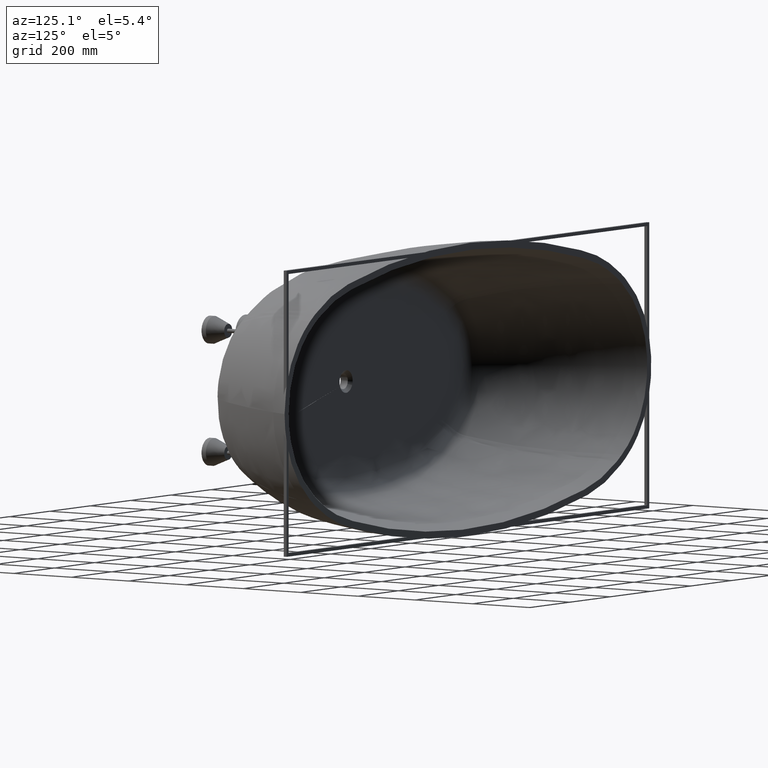
[diagram: clean part render]
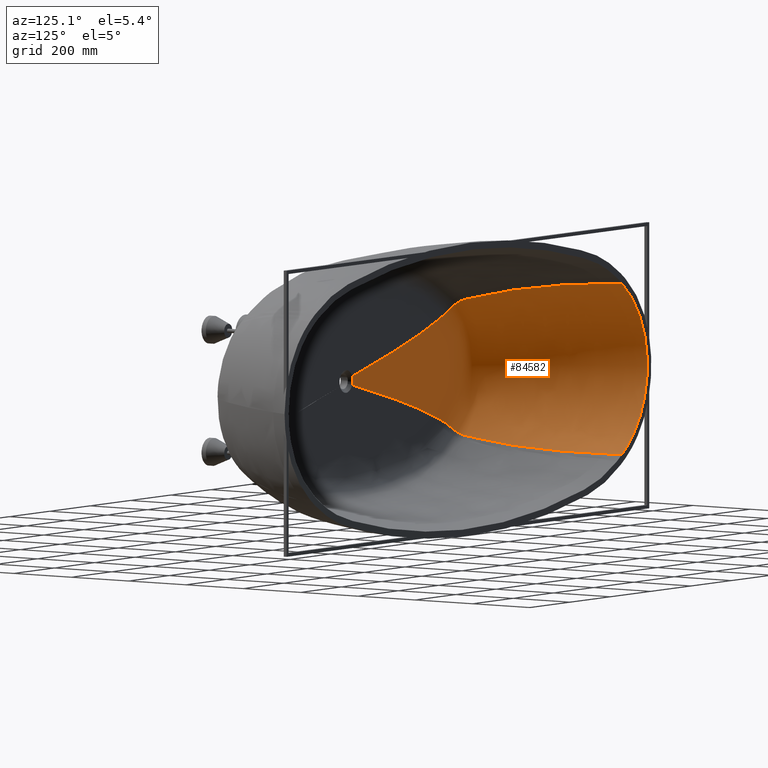
[diagram: same view with one face highlighted and labeled with its STEP entity id]
A machine part, auxiliary view. The second image highlights one B-rep face of the part: STEP entity #84582.
In plain terms, the highlighted face is a freeform B-spline surface patch.
Its self-contained STEP definition (entity closure, byte-faithful):
#126 = CARTESIAN_POINT ( 'NONE',  ( -602.9802361851189971, -301.4173978318845002, -218.3898939131678105 ) ) ;
#787 = CARTESIAN_POINT ( 'NONE',  ( -470.2627012445794321, -425.0000000000000568, 129.5236119817717508 ) ) ;
#990 = CARTESIAN_POINT ( 'NONE',  ( -574.6094987703708057, -377.2359690098493843, 184.5438952929218033 ) ) ;
#1196 = CARTESIAN_POINT ( 'NONE',  ( -31.82125616709898708, -425.0000000000002842, 6.538218446825521113 ) ) ;
#1434 = CARTESIAN_POINT ( 'NONE',  ( -884.1175909659924628, 0.0000000000000000000, -68.19584851435422479 ) ) ;
#1659 = CARTESIAN_POINT ( 'NONE',  ( -426.9182082687505044, -425.0000000000000568, 59.23185770312401388 ) ) ;
#1856 = CARTESIAN_POINT ( 'NONE',  ( -618.4860956474205977, -395.1953534944752278, 101.7796647255279936 ) ) ;
#2066 = CARTESIAN_POINT ( 'NONE',  ( -32.30730635550679608, -425.0000000000001705, -3.513717044238958476 ) ) ;
#2539 = CARTESIAN_POINT ( 'NONE',  ( -294.3379773499847261, -425.0000000000003411, 4.362917863610960644E-10 ) ) ;
#2736 = CARTESIAN_POINT ( 'NONE',  ( -640.6060123566567199, -398.6111520844644360, -1.313451784379805246E-09 ) ) ;
#3410 = CARTESIAN_POINT ( 'NONE',  ( -145.0033374304802294, -425.0000000000000568, -19.08390263455211766 ) ) ;
#3610 = CARTESIAN_POINT ( 'NONE',  ( -612.9874582445504529, -401.2465190131383679, -100.5095781001979276 ) ) ;
#4293 = CARTESIAN_POINT ( 'NONE',  ( -57.85718630919171801, -425.0000000000003411, -17.15731586250793228 ) ) ;
#4492 = CARTESIAN_POINT ( 'NONE',  ( -555.2618717703337552, -402.9565846963503191, -176.0696854547352928 ) ) ;
#5365 = CARTESIAN_POINT ( 'NONE',  ( -530.2474019294827485, -408.5538852651549746, 186.2715315148624313 ) ) ;
#5600 = CARTESIAN_POINT ( 'NONE',  ( -541.4533807296041914, -395.4375403904197128, 194.1251443849746465 ) ) ;
#6238 = CARTESIAN_POINT ( 'NONE',  ( -577.5504314760065654, -411.8631060267908879, 137.9232278893063892 ) ) ;
#6899 = CARTESIAN_POINT ( 'NONE',  ( -737.6175872662125812, -56.21857355978363557, -244.2740935472064621 ) ) ;
#7100 = CARTESIAN_POINT ( 'NONE',  ( -611.6615194018094144, -414.4418579159071783, 50.41428262879040290 ) ) ;
#7765 = CARTESIAN_POINT ( 'NONE',  ( -530.2474019287715237, -408.5538852650131503, -186.2715315173127237 ) ) ;
#7963 = CARTESIAN_POINT ( 'NONE',  ( -608.0362641373938004, -416.3599896351407779, -49.67472587785500338 ) ) ;
#8634 = CARTESIAN_POINT ( 'NONE',  ( -377.4490720482747861, -424.9999999999999432, -110.1307023979033204 ) ) ;
#8834 = CARTESIAN_POINT ( 'NONE',  ( -567.4798020206698084, -418.0246413842516517, -131.7582035948495616 ) ) ;
#9049 = CARTESIAN_POINT ( 'NONE',  ( -823.7913782033846246, -19.84595204168432758, -183.8693107156827296 ) ) ;
#9711 = CARTESIAN_POINT ( 'NONE',  ( -515.2084871030123168, -419.6565130355135125, -172.0340845799219949 ) ) ;
#9922 = CARTESIAN_POINT ( 'NONE',  ( -737.6175872662125812, -56.21857355978363557, -244.2740935472064621 ) ) ;
#10585 = CARTESIAN_POINT ( 'NONE',  ( -526.5011172390976526, -422.4042921638131816, 153.8542310522528282 ) ) ;
#10799 = CARTESIAN_POINT ( 'NONE',  ( -709.9555606062410789, -160.1666056801144862, 219.8147113251353630 ) ) ;
#11475 = CARTESIAN_POINT ( 'NONE',  ( -573.0378401845335929, -423.3936669735269902, 86.22968349193941151 ) ) ;
#11682 = CARTESIAN_POINT ( 'NONE',  ( -748.8340840202179152, -212.2179674089303489, 121.5258740470172256 ) ) ;
#12357 = CARTESIAN_POINT ( 'NONE',  ( -590.5003257651015929, -424.2168557447056969, -2.211613398642992757E-10 ) ) ;
#12564 = CARTESIAN_POINT ( 'NONE',  ( -746.6021976486706535, -260.7674058136171880, -1.176713229418375892E-09 ) ) ;
#13228 = CARTESIAN_POINT ( 'NONE',  ( -563.0806991572630977, -424.8230615905711716, -83.56326089017956349 ) ) ;
#13431 = CARTESIAN_POINT ( 'NONE',  ( -686.9028054808314891, -305.0821521605598150, -113.7773686866715224 ) ) ;
#14097 = CARTESIAN_POINT ( 'NONE',  ( -510.0264130633615878, -425.0000000000000568, -144.7693037255889976 ) ) ;
#14300 = CARTESIAN_POINT ( 'NONE',  ( -595.2024258151003551, -347.5869232337872177, -192.0893117577127214 ) ) ;
#14502 = CARTESIAN_POINT ( 'NONE',  ( -31.46225561373084645, -425.0000000000001705, 8.092342859449818349 ) ) ;
#14739 = CARTESIAN_POINT ( 'NONE',  ( -863.0896100920674598, 0.0000000000000000000, 128.2270580749477631 ) ) ;
#14969 = CARTESIAN_POINT ( 'NONE',  ( -377.4490720472351200, -425.0000000000001137, 110.1307024000943500 ) ) ;
#15169 = CARTESIAN_POINT ( 'NONE',  ( -543.3574728373009748, -392.7630439505473987, 195.0488954957824035 ) ) ;
#15374 = CARTESIAN_POINT ( 'NONE',  ( -32.50006390584670868, -425.0000000000005684, 0.4891279954183393452 ) ) ;
#15611 = CARTESIAN_POINT ( 'NONE',  ( -885.7877090839524499, -20.45155759813055596, 1.866827139609420419E-11 ) ) ;
#15641 = EDGE_CURVE ( 'NONE', #64127, #79948, #115005, .T. ) ;
#15841 = CARTESIAN_POINT ( 'NONE',  ( -274.9613346286967612, -425.0000000000001705, 54.29661028775296217 ) ) ;
#16038 = CARTESIAN_POINT ( 'NONE',  ( -593.2915817213131504, -397.0490638878758318, 145.4280225789121630 ) ) ;
#16244 = CARTESIAN_POINT ( 'NONE',  ( -30.18770637737300788, -425.0000000000000568, -11.99473740934463883 ) ) ;
#16717 = CARTESIAN_POINT ( 'NONE',  ( -147.8065980595003737, -425.0000000000001705, 10.01820543957340881 ) ) ;
#16919 = CARTESIAN_POINT ( 'NONE',  ( -628.8245336329329120, -401.7269980670085943, 53.40193584968791640 ) ) ;
#17602 = CARTESIAN_POINT ( 'NONE',  ( -62.34727932653861870, -425.0000000000001705, -4.647427353547889162 ) ) ;
#17645 = EDGE_CURVE ( 'NONE', #64127, #96558, #110601, .T. ) ;
#17800 = CARTESIAN_POINT ( 'NONE',  ( -625.4588948368651700, -404.7748247059695927, -52.92357635218281331 ) ) ;
#18478 = CARTESIAN_POINT ( 'NONE',  ( -21.58675342020653076, -425.0000000000002274, -6.508844498965148162 ) ) ;
#18681 = CARTESIAN_POINT ( 'NONE',  ( -583.9129857107200223, -406.6922400754192495, -141.4443743032845191 ) ) ;
#19114 = CARTESIAN_POINT ( 'NONE',  ( -377.4490720472351200, -425.0000000000001137, 110.1307024000943500 ) ) ;
#19542 = CARTESIAN_POINT ( 'NONE',  ( -530.2474019287715237, -408.5538852650131503, -186.2715315173127237 ) ) ;
#20412 = CARTESIAN_POINT ( 'NONE',  ( -543.3517808337430779, -413.8736749523329763, 167.1954987560604593 ) ) ;
#20439 = CARTESIAN_POINT ( 'NONE',  ( -504.5978153207740888, -423.4701323780609528, 163.3322115695874857 ) ) ;
#20826 = ORIENTED_EDGE ( 'NONE', *, *, #87161, .F. ) ;
#21075 = CARTESIAN_POINT ( 'NONE',  ( -538.6477861276227941, -399.0944967763387581, -192.5302517700616249 ) ) ;
#21276 = CARTESIAN_POINT ( 'NONE',  ( -592.8239605316024381, -416.2846592877611442, 93.37850596166410355 ) ) ;
#21508 = CARTESIAN_POINT ( 'NONE',  ( -454.1875000870574581, -425.0000000000000000, 139.3175329190581806 ) ) ;
#21951 = CARTESIAN_POINT ( 'NONE',  ( -496.0076081260892238, -424.8386884909340893, -157.8817655764608787 ) ) ;
#22151 = CARTESIAN_POINT ( 'NONE',  ( -612.3149402558336760, -418.1230524194695590, -7.376438882005649519E-10 ) ) ;
#22586 = CARTESIAN_POINT ( 'NONE',  ( -863.0896100920674598, 0.0000000000000000000, 128.2270580749477631 ) ) ;
#23019 = CARTESIAN_POINT ( 'NONE',  ( -585.4499475583830872, -419.6765977751687728, -90.47301039735147299 ) ) ;
#23232 = CARTESIAN_POINT ( 'NONE',  ( -835.3442660986023611, -58.59421108253516053, -127.4176637926212550 ) ) ;
#23897 = CARTESIAN_POINT ( 'NONE',  ( -530.1750372514480887, -421.1407974199289015, -156.4851799992434849 ) ) ;
#24111 = CARTESIAN_POINT ( 'NONE',  ( -736.9949377520124472, -109.6711051739945759, -223.1896957171292684 ) ) ;
#24788 = CARTESIAN_POINT ( 'NONE',  ( -504.5978153207740888, -423.4701323780609528, 163.3322115695874857 ) ) ;
#25000 = CARTESIAN_POINT ( 'NONE',  ( -658.4731281996407688, -207.7315150475330370, 233.1691286933530591 ) ) ;
#25669 = CARTESIAN_POINT ( 'NONE',  ( -547.5398867521481634, -424.2495973082029082, 121.4693872045136942 ) ) ;
#25876 = CARTESIAN_POINT ( 'NONE',  ( -691.6794442656256479, -257.9830099758077040, 169.6141725031395424 ) ) ;
#26315 = CARTESIAN_POINT ( 'NONE',  ( -30.18770637737300788, -425.0000000000000568, -11.99473740934463883 ) ) ;
#26553 = CARTESIAN_POINT ( 'NONE',  ( -577.3991426176253299, -424.8195725939555132, 44.55668972568628305 ) ) ;
#26756 = CARTESIAN_POINT ( 'NONE',  ( -704.7081345981614504, -305.9003768342631133, 60.42920013337925411 ) ) ;
#27423 = CARTESIAN_POINT ( 'NONE',  ( -573.2977936061308810, -424.9999999999998295, -44.11059459368457425 ) ) ;
#27625 = CARTESIAN_POINT ( 'NONE',  ( -671.1525860205097160, -350.5160064857452085, -57.61906324722164641 ) ) ;
#27832 = CARTESIAN_POINT ( 'NONE',  ( -30.56663946940440013, -425.0000000000000000, 11.03557178040407116 ) ) ;
#28069 = CARTESIAN_POINT ( 'NONE',  ( -763.1520700604692138, 0.0000000000000000000, 245.9321533621682079 ) ) ;
#28292 = CARTESIAN_POINT ( 'NONE',  ( -496.6211984759149800, -424.9999999999998863, -106.2890734304728966 ) ) ;
#28491 = CARTESIAN_POINT ( 'NONE',  ( -607.6985622425013389, -378.3610162741240970, -149.7186318451759064 ) ) ;
#28517 = CARTESIAN_POINT ( 'NONE',  ( -30.18770637746065333, -425.0000000000001137, 11.99473740912456776 ) ) ;
#28698 = CARTESIAN_POINT ( 'NONE',  ( -32.40421016191452708, -425.0000000000001137, 2.500534530144230771 ) ) ;
#28933 = CARTESIAN_POINT ( 'NONE',  ( -823.7913782033531334, -19.84595204177379202, 183.8693107157343150 ) ) ;
#29161 = CARTESIAN_POINT ( 'NONE',  ( -377.4490720482747861, -424.9999999999999432, -110.1307023979033204 ) ) ;
#29355 = CARTESIAN_POINT ( 'NONE',  ( -543.3574728364152406, -392.7630439502627837, -195.0488954987167176 ) ) ;
#29562 = CARTESIAN_POINT ( 'NONE',  ( -31.92430000175435012, -425.0000000000002842, -6.020179436800304096 ) ) ;
#30034 = CARTESIAN_POINT ( 'NONE',  ( -135.2464764240108934, -425.0000000000000568, 35.06879270372584045 ) ) ;
#30233 = CARTESIAN_POINT ( 'NONE',  ( -558.1756585794762486, -399.6430611225126768, 177.7371474372136504 ) ) ;
#30261 = CARTESIAN_POINT ( 'NONE',  ( -535.8598503314320851, -402.4779609818966151, 190.6994763648927176 ) ) ;
#30910 = CARTESIAN_POINT ( 'NONE',  ( -61.35634107615359056, -425.0000000000002274, 8.984555789077557364 ) ) ;
#31109 = CARTESIAN_POINT ( 'NONE',  ( -609.7211830442915925, -404.3556055729580407, 99.59774394342294102 ) ) ;
#31785 = CARTESIAN_POINT ( 'NONE',  ( -22.58233951523141769, -425.0000000000001705, -4.466912950640278268E-14 ) ) ;
#31988 = CARTESIAN_POINT ( 'NONE',  ( -630.3420802062465782, -407.7253558983433095, -1.172126161776115201E-09 ) ) ;
#32851 = CARTESIAN_POINT ( 'NONE',  ( -603.1307697130147289, -409.7731089936391982, -97.41505229616062422 ) ) ;
#33716 = CARTESIAN_POINT ( 'NONE',  ( -546.4018684995578496, -411.4826915480842899, -169.7092736253342480 ) ) ;
#34379 = CARTESIAN_POINT ( 'NONE',  ( -554.3981725100939002, -376.5673189759795036, -199.9590303515644791 ) ) ;
#34583 = CARTESIAN_POINT ( 'NONE',  ( -521.4839849452127964, -415.9472614731984095, 178.0025205302160032 ) ) ;
#35015 = CARTESIAN_POINT ( 'NONE',  ( -754.6629436553911319, -19.22118092680719315, 245.4380052979320794 ) ) ;
#35251 = CARTESIAN_POINT ( 'NONE',  ( -508.3522299369006419, -422.4251106227803234, -166.1680474963028757 ) ) ;
#35450 = CARTESIAN_POINT ( 'NONE',  ( -567.4798020210879486, -418.0246413842658058, 131.7582035929355015 ) ) ;
#36324 = CARTESIAN_POINT ( 'NONE',  ( -600.4325705753331022, -419.6810820674508022, 48.15974341613767251 ) ) ;
#36539 = CARTESIAN_POINT ( 'NONE',  ( -855.9161576913299996, -59.12461641466914841, 67.76958098101243877 ) ) ;
#36562 = CARTESIAN_POINT ( 'NONE',  ( -554.3981725110975276, -376.5673189762856055, 199.9590303484776825 ) ) ;
#37207 = CARTESIAN_POINT ( 'NONE',  ( -596.3971396060546795, -421.0892257993417047, -47.40824510289746740 ) ) ;
#37421 = CARTESIAN_POINT ( 'NONE',  ( -827.2680388230826338, -113.2728936328449691, -67.04598199548146908 ) ) ;
#38097 = CARTESIAN_POINT ( 'NONE',  ( -556.2415797866065077, -422.3692637496642419, -125.4583839994187144 ) ) ;
#38311 = CARTESIAN_POINT ( 'NONE',  ( -750.0511065363867829, -162.0416940133543449, -178.3206018293022623 ) ) ;
#38993 = CARTESIAN_POINT ( 'NONE',  ( -504.5978153205205103, -423.4701323780698203, -163.3322115702882797 ) ) ;
#39203 = CARTESIAN_POINT ( 'NONE',  ( -658.4731281989821809, -207.7315150470091680, -233.1691286951333950 ) ) ;
#39872 = CARTESIAN_POINT ( 'NONE',  ( -513.6378538872515946, -424.8347050932564457, 146.3502040216273770 ) ) ;
#40075 = CARTESIAN_POINT ( 'NONE',  ( -625.0717413032110699, -302.3515673436201041, 201.5112927749134428 ) ) ;
#40738 = CARTESIAN_POINT ( 'NONE',  ( -559.0876433756135384, -425.0000000000000568, 82.70799631038453015 ) ) ;
#40942 = CARTESIAN_POINT ( 'NONE',  ( -654.1520586154947523, -349.8406678423824587, 108.4930082153678370 ) ) ;
#41612 = CARTESIAN_POINT ( 'NONE',  ( -535.4338485802522882, -425.0000000000001137, 6.110094376389799593E-10 ) ) ;
#41814 = CARTESIAN_POINT ( 'NONE',  ( -656.3126421001866220, -380.0996898848067076, -1.418128057854429133E-09 ) ) ;
#42023 = CARTESIAN_POINT ( 'NONE',  ( -31.90236670356195248, -425.0000000000002842, 6.133538301930813397 ) ) ;
#42261 = CARTESIAN_POINT ( 'NONE',  ( -763.1520700604693275, 0.0000000000000000000, -245.9321533621679521 ) ) ;
#42494 = CARTESIAN_POINT ( 'NONE',  ( -426.9182082693838538, -424.9999999999998295, -59.23185770018350382 ) ) ;
#42687 = CARTESIAN_POINT ( 'NONE',  ( -618.4860956468847917, -395.1953534942963415, -101.7796647292637289 ) ) ;
#42894 = CARTESIAN_POINT ( 'NONE',  ( -31.99677544854736411, -425.0000000000002842, -5.630502032845011051 ) ) ;
#43364 = CARTESIAN_POINT ( 'NONE',  ( -261.7441329571363440, -425.0000000000003979, -66.57412370544388125 ) ) ;
#43560 = CARTESIAN_POINT ( 'NONE',  ( -561.1061483811291737, -396.0382801257885603, -179.1935165862986707 ) ) ;
#44238 = CARTESIAN_POINT ( 'NONE',  ( -56.57637958446736093, -424.9999999999999432, 19.15922462425706385 ) ) ;
#44437 = CARTESIAN_POINT ( 'NONE',  ( -535.8598503314320851, -402.4779609818966151, 190.6994763648927176 ) ) ;
#44666 = CARTESIAN_POINT ( 'NONE',  ( -530.2474019294827485, -408.5538852651549746, 186.2715315148624313 ) ) ;
#45122 = CARTESIAN_POINT ( 'NONE',  ( -21.58675342020704946, -424.9999999999998295, 6.508844498964343472 ) ) ;
#45324 = CARTESIAN_POINT ( 'NONE',  ( -583.9129857113381377, -406.6922400755726130, 141.4443743002305496 ) ) ;
#46191 = CARTESIAN_POINT ( 'NONE',  ( -618.6650101165405431, -410.0453234036803565, 51.78147752656060732 ) ) ;
#47050 = CARTESIAN_POINT ( 'NONE',  ( -615.1983156628430152, -412.3415906279884666, -51.12141264069980906 ) ) ;
#47724 = CARTESIAN_POINT ( 'NONE',  ( -631.0451753377446948, -255.1104965483241358, -226.6636728199838160 ) ) ;
#47923 = CARTESIAN_POINT ( 'NONE',  ( -574.2817441693767933, -414.1253285294211537, -135.9454429266208706 ) ) ;
#48358 = CARTESIAN_POINT ( 'NONE',  ( -789.6773489195265938, 0.0000000000000000000, 227.0592726093456974 ) ) ;
#48591 = CARTESIAN_POINT ( 'NONE',  ( -518.4032822136089180, -417.9231159415848538, -175.0252940275031506 ) ) ;
#48785 = CARTESIAN_POINT ( 'NONE',  ( -521.4839849446468634, -415.9472614731582780, -178.0025205320684734 ) ) ;
#49443 = CARTESIAN_POINT ( 'NONE',  ( -30.18770637737300788, -425.0000000000000568, -11.99473740934463883 ) ) ;
#49638 = CARTESIAN_POINT ( 'NONE',  ( -533.6634543085771156, -419.6616327651748293, 159.1623876015667065 ) ) ;
#49850 = CARTESIAN_POINT ( 'NONE',  ( -763.5455536325357571, -56.82413888440168392, 225.5551108192470338 ) ) ;
#50505 = CARTESIAN_POINT ( 'NONE',  ( -581.5352078707246619, -421.1011163143214162, 89.03163015703050576 ) ) ;
#50717 = CARTESIAN_POINT ( 'NONE',  ( -807.1537543822205407, -112.4424539620524115, 126.0797976504268689 ) ) ;
#51397 = CARTESIAN_POINT ( 'NONE',  ( -600.0014883151806089, -422.3151300423625685, -4.272536625594725047E-10 ) ) ;
#51611 = CARTESIAN_POINT ( 'NONE',  ( -808.3463273107698797, -164.9394981378813725, -5.279268899009300846E-10 ) ) ;
#52286 = CARTESIAN_POINT ( 'NONE',  ( -573.0378401843811389, -423.3936669735322766, -86.22968349284076339 ) ) ;
#52493 = CARTESIAN_POINT ( 'NONE',  ( -748.8340840198203523, -212.2179674086012255, -121.5258740494206506 ) ) ;
#53169 = CARTESIAN_POINT ( 'NONE',  ( -518.3454128303310426, -424.2707834619682217, -148.7850906863513387 ) ) ;
#53374 = CARTESIAN_POINT ( 'NONE',  ( -654.0795462385965493, -256.1813049848698256, -209.1670532728369665 ) ) ;
#54035 = CARTESIAN_POINT ( 'NONE',  ( -492.5306162796304079, -425.0000000000000000, 156.1373289069643135 ) ) ;
#54236 = CARTESIAN_POINT ( 'NONE',  ( -574.1802162513761232, -346.8158871227248596, 208.1705119587356592 ) ) ;
#54905 = CARTESIAN_POINT ( 'NONE',  ( -496.6211984754541504, -425.0000000000000000, 106.2890734320461945 ) ) ;
#55105 = CARTESIAN_POINT ( 'NONE',  ( -607.6985622433244316, -378.3610162743808587, 149.7186318415141386 ) ) ;
#55145 = B_SPLINE_CURVE_WITH_KNOTS ( 'NONE', 3,
 ( #74345, #128498, #6899, #61024, #115184, #169353, #47724, #101854, #156023, #34379, #88522, #142707, #21075, #75211, #129363, #7765, #61896, #116053, #170233, #48591, #102726, #156892, #35251, #89389, #143577, #21951, #76080, #130240, #8634, #62761, #116922, #171096, #49443 ),
 .UNSPECIFIED., .F., .F.,
 ( 4, 1, 1, 1, 1, 1, 1, 1, 2, 1, 1, 1, 1, 1, 1, 1, 1, 1, 1, 1, 1, 1, 1, 1, 2, 1, 1, 1, 4 ),
 ( 0.0000000000000000000, 0.05994086368778128032, 0.1198817273755625606, 0.1798225910633438340, 0.2397634547511251213, 0.2997043184389063808, 0.3596451821266876681, 0.4195860458144689553, 0.4795269095022502426, 0.4853010234369130593, 0.4910751373715758761, 0.4968492513062386373, 0.5026233652409013430, 0.5083974791755642153, 0.5141715931102269765, 0.5199457070448898488, 0.5257198209795526100, 0.5314939349142153713, 0.5372680488488781325, 0.5430421627835408938, 0.5488162767182037660, 0.5545903906528666383, 0.5603645045875293995, 0.5661386185221921608, 0.5719127324568549220, 0.6789345493426411915, 0.7859563662284274610, 0.8929781831142136195, 0.9904148638847132258 ),
 .UNSPECIFIED. ) ;
#55306 = CARTESIAN_POINT ( 'NONE',  ( -31.86560719388291218, -424.9999999999999432, 6.319709468456708557 ) ) ;
#55545 = CARTESIAN_POINT ( 'NONE',  ( -863.0896100920641629, 0.0000000000000000000, -128.2270580749544138 ) ) ;
#55776 = CARTESIAN_POINT ( 'NONE',  ( -437.5089681830575046, -425.0000000000000568, 31.73076980741596032 ) ) ;
#55972 = CARTESIAN_POINT ( 'NONE',  ( -634.4868176414067875, -395.7384119109113385, 54.07030509437064580 ) ) ;
#56180 = CARTESIAN_POINT ( 'NONE',  ( -32.24639915847896532, -425.0000000000003411, -4.024007474342945478 ) ) ;
#56650 = CARTESIAN_POINT ( 'NONE',  ( -290.7435496685375824, -425.0000000000001137, -20.19816952374982222 ) ) ;
#56847 = CARTESIAN_POINT ( 'NONE',  ( -632.2024252489864011, -398.3204257638606691, -53.82322006505327749 ) ) ;
#57524 = CARTESIAN_POINT ( 'NONE',  ( -140.9969838212771833, -425.0000000000001705, -27.79989469949291347 ) ) ;
#57722 = CARTESIAN_POINT ( 'NONE',  ( -590.1588071886532134, -400.5660563901092246, -144.2675152410367616 ) ) ;
#58400 = CARTESIAN_POINT ( 'NONE',  ( -56.57637958430228053, -425.0000000000001705, -19.15922462519201730 ) ) ;
#58604 = CARTESIAN_POINT ( 'NONE',  ( -535.8598503306388920, -402.4779609816779384, -190.6994763676221964 ) ) ;
#59484 = CARTESIAN_POINT ( 'NONE',  ( -549.3927027433285275, -408.8646732559990369, 172.0489619677341011 ) ) ;
#60352 = CARTESIAN_POINT ( 'NONE',  ( -599.7688475264163799, -412.1435601558198982, 96.15129184476985813 ) ) ;
#61024 = CARTESIAN_POINT ( 'NONE',  ( -711.6965103375945318, -108.7229897643024259, -241.7289408120699647 ) ) ;
#61225 = CARTESIAN_POINT ( 'NONE',  ( -619.7780347730636095, -414.5142396866771719, -9.338609426086188747E-10 ) ) ;
#61896 = CARTESIAN_POINT ( 'NONE',  ( -527.3882758101723311, -411.2565995767396885, -183.6895249672803914 ) ) ;
#62092 = CARTESIAN_POINT ( 'NONE',  ( -592.8239605312603544, -416.2846592877359058, -93.37850596401403891 ) ) ;
#62324 = CARTESIAN_POINT ( 'NONE',  ( -884.1175909659926901, 0.0000000000000000000, 68.19584851435453743 ) ) ;
#62761 = CARTESIAN_POINT ( 'NONE',  ( -253.6677435428769627, -425.0000000000003411, -71.91406835424538713 ) ) ;
#62960 = CARTESIAN_POINT ( 'NONE',  ( -537.0036005331106708, -417.9609623444971476, -161.8684108069006129 ) ) ;
#63170 = CARTESIAN_POINT ( 'NONE',  ( -780.9901950819524927, -19.45408155460689059, -226.6172967906037172 ) ) ;
#63827 = CARTESIAN_POINT ( 'NONE',  ( -511.8702590841417646, -421.1543728557762734, 169.0751704500239612 ) ) ;
#64042 = CARTESIAN_POINT ( 'NONE',  ( -711.6965103377091282, -108.7229897647366528, 241.7289408116342599 ) ) ;
#64127 = VERTEX_POINT ( 'NONE', #154262 ) ;
#64710 = CARTESIAN_POINT ( 'NONE',  ( -556.2415797868708296, -422.3692637496561133, 125.4583839983174300 ) ) ;
#64925 = CARTESIAN_POINT ( 'NONE',  ( -750.0511065366874845, -162.0416940137824895, 178.3206018279825287 ) ) ;
#65603 = CARTESIAN_POINT ( 'NONE',  ( -587.6430570030241824, -423.3765946475139117, 45.94726730046846797 ) ) ;
#65812 = CARTESIAN_POINT ( 'NONE',  ( -767.9324632984121308, -213.2196514753680674, 64.58186740642108248 ) ) ;
#66491 = CARTESIAN_POINT ( 'NONE',  ( -582.7778679086478633, -424.2229494046582090, -45.24295275667741834 ) ) ;
#66698 = CARTESIAN_POINT ( 'NONE',  ( -736.8971158529020613, -260.2491910554506376, -62.73846926160950233 ) ) ;
#67215 = ORIENTED_EDGE ( 'NONE', *, *, #15641, .T. ) ;
#67369 = CARTESIAN_POINT ( 'NONE',  ( -542.5321592990869703, -424.8280027670278400, -119.5517566303454515 ) ) ;
#67573 = CARTESIAN_POINT ( 'NONE',  ( -661.1758011238664494, -303.9233684358358119, -163.3980064505374799 ) ) ;
#68233 = CARTESIAN_POINT ( 'NONE',  ( -492.5306162795899922, -425.0000000000000000, -156.1373289070711508 ) ) ;
#68384 = ORIENTED_EDGE ( 'NONE', *, *, #17645, .F. ) ;
#68436 = CARTESIAN_POINT ( 'NONE',  ( -574.1802162502491456, -346.8158871223718052, -208.1705119619312825 ) ) ;
#68642 = CARTESIAN_POINT ( 'NONE',  ( -31.64279488600535473, -425.0000000000001137, 7.347744385282005908 ) ) ;
#68878 = CARTESIAN_POINT ( 'NONE',  ( -884.1175909659926901, 0.0000000000000000000, 68.19584851435453743 ) ) ;
#69107 = CARTESIAN_POINT ( 'NONE',  ( -390.4826487300786653, -425.0000000000001137, 102.5912100713458273 ) ) ;
#69303 = CARTESIAN_POINT ( 'NONE',  ( -563.0933885144546593, -393.3830553385741382, 180.0395681502621699 ) ) ;
#69509 = CARTESIAN_POINT ( 'NONE',  ( -32.49987141781183908, -425.0000000000003411, -0.9902514940451515590 ) ) ;
#69750 = CARTESIAN_POINT ( 'NONE',  ( -874.7337286101792415, -20.33884598842688618, -68.07655575835802608 ) ) ;
#69981 = CARTESIAN_POINT ( 'NONE',  ( -284.2219652696858816, -425.0000000000002842, 37.87642810560056716 ) ) ;
#70183 = CARTESIAN_POINT ( 'NONE',  ( -616.2670017105706393, -397.7942470906733661, 101.3108748468987699 ) ) ;
#70858 = CARTESIAN_POINT ( 'NONE',  ( -149.3255230957751394, -425.0000000000001705, -3.911575999425258178E-10 ) ) ;
#71060 = CARTESIAN_POINT ( 'NONE',  ( -637.1815546084411608, -401.9924742531767947, -1.277048866668441969E-09 ) ) ;
#71735 = CARTESIAN_POINT ( 'NONE',  ( -61.35634107605076082, -425.0000000000001137, -8.984555790129334696 ) ) ;
#71935 = CARTESIAN_POINT ( 'NONE',  ( -609.7211830438119478, -404.3556055728204228, -99.59774394687819665 ) ) ;
#72605 = CARTESIAN_POINT ( 'NONE',  ( -20.88301537925322648, -425.0000000000003411, -8.396684578261886855 ) ) ;
#72809 = CARTESIAN_POINT ( 'NONE',  ( -552.3404618274839777, -406.0237396027483214, -174.1747794312602764 ) ) ;
#73679 = CARTESIAN_POINT ( 'NONE',  ( -527.3882758108381950, -411.2565995768440530, 183.6895249650094399 ) ) ;
#74345 = CARTESIAN_POINT ( 'NONE',  ( -763.1520700604693275, 0.0000000000000000000, -245.9321533621679521 ) ) ;
#74549 = CARTESIAN_POINT ( 'NONE',  ( -574.2817441698824723, -414.1253285294783382, 135.9454429241906439 ) ) ;
#75211 = CARTESIAN_POINT ( 'NONE',  ( -535.8598503306388920, -402.4779609816779384, -190.6994763676221964 ) ) ;
#75408 = CARTESIAN_POINT ( 'NONE',  ( -608.0362641374489385, -416.3599896351434495, 49.67472587620815005 ) ) ;
#75435 = CARTESIAN_POINT ( 'NONE',  ( -508.3522299372245925, -422.4251106227705463, 166.1680474953736848 ) ) ;
#76080 = CARTESIAN_POINT ( 'NONE',  ( -492.5306162795899922, -425.0000000000000000, -156.1373289070711508 ) ) ;
#76276 = CARTESIAN_POINT ( 'NONE',  ( -604.3014366287496841, -418.1047367582705192, -48.91896335979265587 ) ) ;
#77143 = CARTESIAN_POINT ( 'NONE',  ( -563.9028882687638315, -419.6702470440307593, -129.6316174904196430 ) ) ;
#77357 = CARTESIAN_POINT ( 'NONE',  ( -805.7071224792639441, -57.84304201352884434, -183.0241097145284641 ) ) ;
#78023 = CARTESIAN_POINT ( 'NONE',  ( -511.8702590837515913, -421.1543728557824693, -169.0751704511846469 ) ) ;
#78235 = CARTESIAN_POINT ( 'NONE',  ( -711.6965103375945318, -108.7229897643024259, -241.7289408120699647 ) ) ;
#78912 = CARTESIAN_POINT ( 'NONE',  ( -522.5837744379122114, -423.4506408533414401, 151.2869838221224654 ) ) ;
#79121 = CARTESIAN_POINT ( 'NONE',  ( -682.3436046893336879, -208.8751406863214868, 215.2089149773100871 ) ) ;
#79792 = CARTESIAN_POINT ( 'NONE',  ( -568.3111139584864304, -424.2339781752981480, 84.87909805570446053 ) ) ;
#79948 = VERTEX_POINT ( 'NONE', #125416 ) ;
#79999 = CARTESIAN_POINT ( 'NONE',  ( -718.3998524826413359, -259.3112864539258453, 118.0967526277006812 ) ) ;
#80023 = CARTESIAN_POINT ( 'NONE',  ( -574.1802162513761232, -346.8158871227248596, 208.1705119587356592 ) ) ;
#80668 = CARTESIAN_POINT ( 'NONE',  ( -585.0529765675870522, -424.8176448397535410, -1.189520269366248601E-10 ) ) ;
#80869 = CARTESIAN_POINT ( 'NONE',  ( -714.0412088487042865, -306.3524655654035200, -1.404756646879967564E-09 ) ) ;
#81532 = CARTESIAN_POINT ( 'NONE',  ( -559.0876433755906874, -424.9999999999998863, -82.70799631052089751 ) ) ;
#81733 = CARTESIAN_POINT ( 'NONE',  ( -654.1520586148129723, -349.8406678421604852, -108.4930082195340901 ) ) ;
#81940 = CARTESIAN_POINT ( 'NONE',  ( -30.89972261482937199, -424.9999999999998863, 10.06208328646756733 ) ) ;
#82176 = CARTESIAN_POINT ( 'NONE',  ( -789.6773489195265938, 0.0000000000000000000, 227.0592726093456974 ) ) ;
#82399 = CARTESIAN_POINT ( 'NONE',  ( -470.2627012451155224, -425.0000000000000568, -129.5236119803637678 ) ) ;
#82598 = CARTESIAN_POINT ( 'NONE',  ( -574.6094987694119709, -377.2359690095566407, -184.5438952962288965 ) ) ;
#82806 = CARTESIAN_POINT ( 'NONE',  ( -32.44035390502384075, -425.0000000000000000, 1.994404750086929967 ) ) ;
#83046 = CARTESIAN_POINT ( 'NONE',  ( -853.8598255686556513, -20.13485191894039161, 127.9962418395245720 ) ) ;
#83278 = CARTESIAN_POINT ( 'NONE',  ( -253.6677435422222118, -425.0000000000000568, 71.91406835494080951 ) ) ;
#83478 = CARTESIAN_POINT ( 'NONE',  ( -541.4533807296041914, -395.4375403904197128, 194.1251443849746465 ) ) ;
#83689 = CARTESIAN_POINT ( 'NONE',  ( -31.52403385081740339, -425.0000000000002842, -8.091393172978634141 ) ) ;
#84161 = CARTESIAN_POINT ( 'NONE',  ( -140.9969838213130515, -424.9999999999998295, 27.79989469833032345 ) ) ;
#84362 = CARTESIAN_POINT ( 'NONE',  ( -590.1588071893337428, -400.5660563903206253, 144.2675152377138659 ) ) ;
#84582 = ADVANCED_FACE ( 'NONE', ( #149701 ), #137261, .T. ) ;
#85041 = CARTESIAN_POINT ( 'NONE',  ( -62.34727932649231263, -425.0000000000001705, 4.647427352829060609 ) ) ;
#85239 = CARTESIAN_POINT ( 'NONE',  ( -625.4588948369516856, -404.7748247059822120, 52.92357634976526981 ) ) ;
#85921 = CARTESIAN_POINT ( 'NONE',  ( -22.40778507859014468, -425.0000000000001705, -2.282863941143036257 ) ) ;
#86121 = CARTESIAN_POINT ( 'NONE',  ( -622.0791551513110562, -407.5330786872563067, -52.38373371479951857 ) ) ;
#86984 = CARTESIAN_POINT ( 'NONE',  ( -580.7552445358460318, -409.3875943078457453, -139.7664484131360325 ) ) ;
#87161 = EDGE_CURVE ( 'NONE', #96558, #169856, #55145, .T. ) ;
#87423 = CARTESIAN_POINT ( 'NONE',  ( -538.6477861284530491, -399.0944967765906881, 192.5302517672338070 ) ) ;
#87854 = CARTESIAN_POINT ( 'NONE',  ( -527.3882758101723311, -411.2565995767396885, -183.6895249672803914 ) ) ;
#88522 = CARTESIAN_POINT ( 'NONE',  ( -543.3574728364152406, -392.7630439502627837, -195.0488954987167176 ) ) ;
#88722 = CARTESIAN_POINT ( 'NONE',  ( -540.2255164250510688, -416.0332663519140510, 164.5618518356972686 ) ) ;
#89389 = CARTESIAN_POINT ( 'NONE',  ( -504.5978153205205103, -423.4701323780698203, -163.3322115702882797 ) ) ;
#89586 = CARTESIAN_POINT ( 'NONE',  ( -589.2022065384139751, -418.0715876774161188, 91.92917692387995032 ) ) ;
#90446 = CARTESIAN_POINT ( 'NONE',  ( -608.3923822121337253, -419.6835597463487488, -6.348224201033861118E-10 ) ) ;
#90660 = CARTESIAN_POINT ( 'NONE',  ( -866.8056249972519254, -59.41767806546147312, -1.677217693442868886E-11 ) ) ;
#91325 = CARTESIAN_POINT ( 'NONE',  ( -581.5352078704894438, -421.1011163143250542, -89.03163015851475848 ) ) ;
#91537 = CARTESIAN_POINT ( 'NONE',  ( -807.1537543821516465, -112.4424539617796199, -126.0797976510513507 ) ) ;
#92223 = CARTESIAN_POINT ( 'NONE',  ( -526.5011172387906981, -422.4042921638225039, -153.8542310532510271 ) ) ;
#92439 = CARTESIAN_POINT ( 'NONE',  ( -709.9555606058886497, -160.1666056796260023, -219.8147113262981804 ) ) ;
#93121 = CARTESIAN_POINT ( 'NONE',  ( -500.5312032347507625, -424.2833750417742635, 160.5695038655655935 ) ) ;
#93328 = CARTESIAN_POINT ( 'NONE',  ( -631.0451753386677183, -255.1104965488145240, 226.6636728175309088 ) ) ;
#93353 = CARTESIAN_POINT ( 'NONE',  ( -518.4032822141195993, -417.9231159416015089, 175.0252940258779688 ) ) ;
#94000 = CARTESIAN_POINT ( 'NONE',  ( -542.5321592991654143, -424.8280027670263053, 119.5517566300433003 ) ) ;
#94204 = CARTESIAN_POINT ( 'NONE',  ( -661.1758011247682134, -303.9233684361946075, 163.3980064469598119 ) ) ;
#94872 = CARTESIAN_POINT ( 'NONE',  ( -573.2977936061321316, -425.0000000000000568, 44.11059459358303059 ) ) ;
#95073 = CARTESIAN_POINT ( 'NONE',  ( -671.1525860206539846, -350.5160064857655584, 57.61906324429536141 ) ) ;
#95741 = CARTESIAN_POINT ( 'NONE',  ( -528.3665702610205699, -424.9999999999998295, -39.80612239939338792 ) ) ;
#95938 = CARTESIAN_POINT ( 'NONE',  ( -647.6998379729050157, -379.7760985648072847, -55.39242599351774743 ) ) ;
#96143 = CARTESIAN_POINT ( 'NONE',  ( -32.11044576450489529, -425.0000000000005116, 5.060411553341800150 ) ) ;
#96381 = CARTESIAN_POINT ( 'NONE',  ( -754.6629436553911319, -19.22118092680719315, 245.4380052979320794 ) ) ;
#96558 = VERTEX_POINT ( 'NONE', #126357 ) ;
#96615 = CARTESIAN_POINT ( 'NONE',  ( -411.8553912869447231, -424.9999999999998863, -84.45071349699787788 ) ) ;
#96810 = CARTESIAN_POINT ( 'NONE',  ( -595.4133835570135034, -394.4262649114510282, -146.1051646277353768 ) ) ;
#97018 = CARTESIAN_POINT ( 'NONE',  ( -31.96114103944622187, -425.0000000000002274, -5.824305591567435769 ) ) ;
#97493 = CARTESIAN_POINT ( 'NONE',  ( -253.6677435428769627, -425.0000000000003411, -71.91406835424538713 ) ) ;
#97691 = CARTESIAN_POINT ( 'NONE',  ( -541.4533807287396030, -395.4375403901438517, -194.1251443878754799 ) ) ;
#98373 = CARTESIAN_POINT ( 'NONE',  ( -57.85718630934915296, -425.0000000000000000, 17.15731586154281629 ) ) ;
#98573 = CARTESIAN_POINT ( 'NONE',  ( -555.2618717710907958, -402.9565846965595597, 176.0696854518232328 ) ) ;
#99253 = CARTESIAN_POINT ( 'NONE',  ( -22.07263124485599448, -425.0000000000002274, 4.409427813253713246 ) ) ;
#99453 = CARTESIAN_POINT ( 'NONE',  ( -606.4422716962151299, -407.1850807226975348, 98.56683750356664575 ) ) ;
#99479 = CARTESIAN_POINT ( 'NONE',  ( -863.0896100920641629, 0.0000000000000000000, -128.2270580749544138 ) ) ;
#100323 = CARTESIAN_POINT ( 'NONE',  ( -626.8799965029556915, -410.1957283855746255, -1.102886457747966095E-09 ) ) ;
#101187 = CARTESIAN_POINT ( 'NONE',  ( -599.7688475260138148, -412.1435601557542441, -96.15129184764207082 ) ) ;
#101416 = CARTESIAN_POINT ( 'NONE',  ( -884.1175909659924628, 0.0000000000000000000, -68.19584851435422479 ) ) ;
#101796 = ORIENTED_EDGE ( 'NONE', *, *, #132650, .T. ) ;
#101854 = CARTESIAN_POINT ( 'NONE',  ( -602.9802361851189971, -301.4173978318845002, -218.3898939131678105 ) ) ;
#102059 = CARTESIAN_POINT ( 'NONE',  ( -543.3517808331547485, -413.8736749522678338, -167.1954987582699346 ) ) ;
#102287 = CARTESIAN_POINT ( 'NONE',  ( -658.4731281996407688, -207.7315150475330370, 233.1691286933530591 ) ) ;
#102726 = CARTESIAN_POINT ( 'NONE',  ( -515.2084871030123168, -419.6565130355135125, -172.0340845799219949 ) ) ;
#102920 = CARTESIAN_POINT ( 'NONE',  ( -518.4032822141195993, -417.9231159416015089, 175.0252940258779688 ) ) ;
#103785 = CARTESIAN_POINT ( 'NONE',  ( -563.9028882691335411, -419.6702470440329762, 129.6316174887755324 ) ) ;
#104000 = CARTESIAN_POINT ( 'NONE',  ( -805.7071224792293833, -57.84304201376141208, 183.0241097144979392 ) ) ;
#104021 = CARTESIAN_POINT ( 'NONE',  ( -63.31793356684024587, -424.9999999999999432, 20.90432536604749814 ) ) ;
#104662 = CARTESIAN_POINT ( 'NONE',  ( -596.3971396060885581, -421.0892257993415910, 47.40824510185355223 ) ) ;
#104878 = CARTESIAN_POINT ( 'NONE',  ( -827.2680388231548250, -113.2728936328698239, 67.04598199504162892 ) ) ;
#105563 = CARTESIAN_POINT ( 'NONE',  ( -592.1548489566234821, -422.3252050775470252, -46.66918190218540730 ) ) ;
#105775 = CARTESIAN_POINT ( 'NONE',  ( -797.9988955070857628, -164.4001765216828232, -66.00127716669665290 ) ) ;
#105801 = CARTESIAN_POINT ( 'NONE',  ( -832.7984664122263894, 0.0000000000000000000, 184.2106301342249139 ) ) ;
#106006 = CARTESIAN_POINT ( 'NONE',  ( -737.6175872661711992, -56.21857356006103146, 244.2740935471944397 ) ) ;
#106453 = CARTESIAN_POINT ( 'NONE',  ( -552.0584722514156510, -423.4178450925371067, -123.4386904788967456 ) ) ;
#106662 = CARTESIAN_POINT ( 'NONE',  ( -721.2623294000136411, -210.7993653654346815, -174.5449759699613992 ) ) ;
#106687 = CARTESIAN_POINT ( 'NONE',  ( -711.6965103377091282, -108.7229897647366528, 241.7289408116342599 ) ) ;
#107338 = CARTESIAN_POINT ( 'NONE',  ( -500.5312032345723310, -424.2833750417796637, -160.5695038660410319 ) ) ;
#107541 = CARTESIAN_POINT ( 'NONE',  ( -631.0451753377446948, -255.1104965483241358, -226.6636728199838160 ) ) ;
#108204 = CARTESIAN_POINT ( 'NONE',  ( -510.0264130633967739, -425.0000000000000568, 144.7693037254701665 ) ) ;
#108408 = CARTESIAN_POINT ( 'NONE',  ( -595.2024258161778789, -347.5869232341249244, 192.0893117542767072 ) ) ;
#109075 = CARTESIAN_POINT ( 'NONE',  ( -515.2988702683734346, -425.0000000000000568, 74.45566247171701946 ) ) ;
#109273 = CARTESIAN_POINT ( 'NONE',  ( -631.3262718543518304, -379.1904383085949348, 104.2847724766881470 ) ) ;
#109479 = CARTESIAN_POINT ( 'NONE',  ( -31.88420149964093397, -425.0000000000003411, 6.226004248402833952 ) ) ;
#109718 = CARTESIAN_POINT ( 'NONE',  ( -832.7984664122255936, 0.0000000000000000000, -184.2106301342247150 ) ) ;
#109945 = CARTESIAN_POINT ( 'NONE',  ( -443.3177987095624530, -425.0000000000001137, 1.055401694071421208E-09 ) ) ;
#110142 = CARTESIAN_POINT ( 'NONE',  ( -642.9214975717293328, -396.0384646939583035, -1.331447980297674680E-09 ) ) ;
#110168 = CARTESIAN_POINT ( 'NONE',  ( -500.5312032347507625, -424.2833750417742635, 160.5695038655655935 ) ) ;
#110353 = CARTESIAN_POINT ( 'NONE',  ( -32.13573421449045497, -424.9999999999997158, -4.793361101509057143 ) ) ;
#110601 = B_SPLINE_CURVE_WITH_KNOTS ( 'NONE', 3,
 ( #152779, #48358, #105801, #22586, #62324, #135929, #101416, #99479, #124363, #145077, #138775 ),
 .UNSPECIFIED., .F., .F.,
 ( 4, 1, 1, 1, 1, 1, 1, 1, 4 ),
 ( 0.4325212151203419175, 0.4550141434135613894, 0.4748093778667312193, 0.4775070717067808612, 0.4999999999963563035, 0.5224929282932199159, 0.5251906221332697244, 0.5449858565864393878, 0.5674787848796588596 ),
 .UNSPECIFIED. ) ;
#110822 = CARTESIAN_POINT ( 'NONE',  ( -284.2219652700811139, -425.0000000000001137, -37.87642810443222885 ) ) ;
#111021 = CARTESIAN_POINT ( 'NONE',  ( -616.2670017100476798, -397.7942470904998800, -101.3108748505852930 ) ) ;
#111697 = CARTESIAN_POINT ( 'NONE',  ( -135.2464764239744568, -425.0000000000002842, -35.06879270487321065 ) ) ;
#111898 = CARTESIAN_POINT ( 'NONE',  ( -558.1756585786835103, -399.6430611222716607, -177.7371474402318370 ) ) ;
#112576 = CARTESIAN_POINT ( 'NONE',  ( -20.44505088742344512, -424.9999999999999432, 9.364460279623941119 ) ) ;
#112779 = CARTESIAN_POINT ( 'NONE',  ( -533.0658169174860177, -405.6264293053328061, 188.6145305940340506 ) ) ;
#113220 = CARTESIAN_POINT ( 'NONE',  ( -515.2084871034645630, -419.6565130355160136, 172.0340845785286490 ) ) ;
#113649 = CARTESIAN_POINT ( 'NONE',  ( -580.7552445364287905, -409.3875943079648891, 139.7664484102622851 ) ) ;
#114518 = CARTESIAN_POINT ( 'NONE',  ( -615.1983156629113410, -412.3415906279948331, 51.12141263868939234 ) ) ;
#115005 = B_SPLINE_CURVE_WITH_KNOTS ( 'NONE', 3,
 ( #168255, #35015, #106006, #106687, #120009, #102287, #157523, #170864, #80023, #36562, #132633, #5600, #87423, #30261, #156657, #44666, #161066, #169994, #137006, #93353, #113220, #123481, #75435, #20439, #110168, #145965, #175258, #21508, #19114, #141403, #133527, #104021, #28517 ),
 .UNSPECIFIED., .F., .F.,
 ( 4, 1, 1, 1, 1, 1, 1, 1, 2, 1, 1, 1, 1, 1, 1, 1, 1, 1, 1, 1, 1, 1, 1, 1, 2, 1, 1, 1, 4 ),
 ( 0.0000000000000000000, 0.05994086368778128032, 0.1198817273755625606, 0.1798225910633438340, 0.2397634547511251213, 0.2997043184389063808, 0.3596451821266876681, 0.4195860458144689553, 0.4795269095022502426, 0.4853010234369130593, 0.4910751373715758761, 0.4968492513062386373, 0.5026233652409013430, 0.5083974791755642153, 0.5141715931102269765, 0.5199457070448898488, 0.5257198209795526100, 0.5314939349142153713, 0.5372680488488781325, 0.5430421627835408938, 0.5488162767182037660, 0.5545903906528666383, 0.5603645045875293995, 0.5661386185221921608, 0.5719127324568549220, 0.6789345493426411915, 0.7859563662284274610, 0.8929781831142136195, 0.9904148638846667074 ),
 .UNSPECIFIED. ) ;
#115184 = CARTESIAN_POINT ( 'NONE',  ( -685.3366645680407601, -159.0521832755243565, -238.1120647250279490 ) ) ;
#115390 = CARTESIAN_POINT ( 'NONE',  ( -611.6615194017476824, -414.4418579159031424, -50.41428263062582005 ) ) ;
#116053 = CARTESIAN_POINT ( 'NONE',  ( -524.4726442693443005, -413.7241095267849005, -180.9129853451350698 ) ) ;
#116251 = CARTESIAN_POINT ( 'NONE',  ( -570.9316077643535436, -416.1779751661752584, -133.8749674709333988 ) ) ;
#116922 = CARTESIAN_POINT ( 'NONE',  ( -135.3512453599844889, -425.0000000000001705, -39.57639386236466805 ) ) ;
#117119 = CARTESIAN_POINT ( 'NONE',  ( -518.4032822136089180, -417.9231159415848538, -175.0252940275031506 ) ) ;
#117334 = CARTESIAN_POINT ( 'NONE',  ( -754.6629436554302401, -19.22118092670048028, -245.4380052978845015 ) ) ;
#118000 = CARTESIAN_POINT ( 'NONE',  ( -530.1750372518185941, -421.1407974199230466, 156.4851799979988130 ) ) ;
#118217 = CARTESIAN_POINT ( 'NONE',  ( -736.9949377521220413, -109.6711051744099308, 223.1896957166493110 ) ) ;
#118889 = CARTESIAN_POINT ( 'NONE',  ( -577.4183709122924029, -422.3434396448018333, 87.61414994392569611 ) ) ;
#119102 = CARTESIAN_POINT ( 'NONE',  ( -778.3686328291255450, -163.4240711183476549, 124.1527700931583098 ) ) ;
#119775 = CARTESIAN_POINT ( 'NONE',  ( -595.4293221084990364, -423.3671617784555679, -3.239583300574767909E-10 ) ) ;
#119984 = CARTESIAN_POINT ( 'NONE',  ( -777.9738817609274975, -213.7731059155751439, -8.650317812474542577E-10 ) ) ;
#120009 = CARTESIAN_POINT ( 'NONE',  ( -685.3366645684091054, -159.0521832760350947, 238.1120647239610548 ) ) ;
#120658 = CARTESIAN_POINT ( 'NONE',  ( -568.3111139583795648, -424.2339781753014449, -84.87909805631727522 ) ) ;
#120860 = CARTESIAN_POINT ( 'NONE',  ( -718.3998524820837019, -259.3112864536177540, -118.0967526309744073 ) ) ;
#121519 = CARTESIAN_POINT ( 'NONE',  ( -513.6378538871610999, -424.8347050932582647, -146.3502040219032097 ) ) ;
#121722 = CARTESIAN_POINT ( 'NONE',  ( -625.0717413021591256, -302.3515673432108883, -201.5112927781112546 ) ) ;
#122384 = CARTESIAN_POINT ( 'NONE',  ( -454.1875000870574581, -425.0000000000000000, 139.3175329190581806 ) ) ;
#122588 = CARTESIAN_POINT ( 'NONE',  ( -554.3981725110975276, -376.5673189762856055, 199.9590303484776825 ) ) ;
#122794 = CARTESIAN_POINT ( 'NONE',  ( -31.72870371223150698, -424.9999999999998295, 6.974671970178554226 ) ) ;
#123031 = CARTESIAN_POINT ( 'NONE',  ( -895.2524548180397232, 0.0000000000000000000, 2.455080812188972557E-13 ) ) ;
#123257 = CARTESIAN_POINT ( 'NONE',  ( -411.8553912860866717, -425.0000000000001137, 84.45071349967045649 ) ) ;
#123456 = CARTESIAN_POINT ( 'NONE',  ( -595.4133835577396212, -394.4262649116897137, 146.1051646242782454 ) ) ;
#123481 = CARTESIAN_POINT ( 'NONE',  ( -511.8702590841417646, -421.1543728557762734, 169.0751704500239612 ) ) ;
#123664 = CARTESIAN_POINT ( 'NONE',  ( -32.45268586744227690, -425.0000000000001705, -1.992145310248305545 ) ) ;
#124136 = CARTESIAN_POINT ( 'NONE',  ( -290.7435496684075815, -425.0000000000002842, 20.19816952459432713 ) ) ;
#124337 = CARTESIAN_POINT ( 'NONE',  ( -632.2024252490840581, -398.3204257638767558, 53.82322006247289181 ) ) ;
#124363 = CARTESIAN_POINT ( 'NONE',  ( -832.7984664122255936, 0.0000000000000000000, -184.2106301342247150 ) ) ;
#124850 = EDGE_LOOP ( 'NONE', ( #67215, #101796, #20826, #68384 ) ) ;
#125012 = CARTESIAN_POINT ( 'NONE',  ( -147.8065980596083477, -425.0000000000001137, -10.01820544035315130 ) ) ;
#125216 = CARTESIAN_POINT ( 'NONE',  ( -628.8245336328403710, -401.7269980669938718, -53.40193585219715544 ) ) ;
#125416 = CARTESIAN_POINT ( 'NONE',  ( -30.18770637746065333, -425.0000000000001137, 11.99473740912456776 ) ) ;
#125895 = CARTESIAN_POINT ( 'NONE',  ( -59.92262558748283396, -425.0000000000002274, -13.27431321739870640 ) ) ;
#126093 = CARTESIAN_POINT ( 'NONE',  ( -587.0410252843180388, -403.7619002933130332, -142.9438394667323280 ) ) ;
#126357 = CARTESIAN_POINT ( 'NONE',  ( -763.1520700604693275, 0.0000000000000000000, -245.9321533621679521 ) ) ;
#126766 = CARTESIAN_POINT ( 'NONE',  ( -20.44505088742183219, -425.0000000000001705, -9.364460279625722805 ) ) ;
#126965 = CARTESIAN_POINT ( 'NONE',  ( -533.0658169167319329, -405.6264293051498271, -188.6145305966374508 ) ) ;
#127827 = CARTESIAN_POINT ( 'NONE',  ( -546.4018685001926769, -411.4826915481841638, 169.7092736229110983 ) ) ;
#128498 = CARTESIAN_POINT ( 'NONE',  ( -754.6629436554302401, -19.22118092670048028, -245.4380052978845015 ) ) ;
#128700 = CARTESIAN_POINT ( 'NONE',  ( -596.3392575312850568, -414.3108558654880085, 94.79633735562534014 ) ) ;
#129363 = CARTESIAN_POINT ( 'NONE',  ( -533.0658169167319329, -405.6264293051498271, -188.6145305966374508 ) ) ;
#129563 = CARTESIAN_POINT ( 'NONE',  ( -616.1019309286169801, -416.4016114564720965, -8.379210068390072394E-10 ) ) ;
#130240 = CARTESIAN_POINT ( 'NONE',  ( -454.1875000876136710, -425.0000000000000000, -139.3175329177427386 ) ) ;
#130440 = CARTESIAN_POINT ( 'NONE',  ( -589.2022065381054290, -418.0715876774054323, -91.92917692594659229 ) ) ;
#130651 = CARTESIAN_POINT ( 'NONE',  ( -853.8598255686767970, -20.13485191887336256, -127.9962418394779746 ) ) ;
#131311 = CARTESIAN_POINT ( 'NONE',  ( -533.6634543081472657, -419.6616327651723850, -159.1623876030586757 ) ) ;
#131525 = CARTESIAN_POINT ( 'NONE',  ( -763.5455536325754338, -56.82413888413637437, -225.5551108192658489 ) ) ;
#132187 = CARTESIAN_POINT ( 'NONE',  ( -508.3522299372245925, -422.4251106227705463, 166.1680474953736848 ) ) ;
#132404 = CARTESIAN_POINT ( 'NONE',  ( -685.3366645684091054, -159.0521832760350947, 238.1120647239610548 ) ) ;
#132633 = CARTESIAN_POINT ( 'NONE',  ( -543.3574728373009748, -392.7630439505473987, 195.0488954957824035 ) ) ;
#132650 = EDGE_CURVE ( 'NONE', #79948, #169856, #148155, .T. ) ;
#133089 = CARTESIAN_POINT ( 'NONE',  ( -552.0584722516222200, -423.4178450925298307, 123.4386904780642169 ) ) ;
#133298 = CARTESIAN_POINT ( 'NONE',  ( -721.2623294005527441, -210.7993653658739959, 174.5449759677820225 ) ) ;
#133527 = CARTESIAN_POINT ( 'NONE',  ( -135.3512453600208971, -425.0000000000000000, 39.57639386128685288 ) ) ;
#133978 = CARTESIAN_POINT ( 'NONE',  ( -582.7778679086601414, -424.2229494046581522, 45.24295275624218249 ) ) ;
#134182 = CARTESIAN_POINT ( 'NONE',  ( -736.8971158530565617, -260.2491910554787751, 62.73846925930430274 ) ) ;
#134849 = CARTESIAN_POINT ( 'NONE',  ( -577.3991426176199866, -424.8195725939553995, -44.55668972592100374 ) ) ;
#135050 = CARTESIAN_POINT ( 'NONE',  ( -704.7081345980027436, -305.9003768342385570, -60.42920013613273511 ) ) ;
#135702 = CARTESIAN_POINT ( 'NONE',  ( -538.7013883799268115, -424.9999999999998863, -118.3060023528889104 ) ) ;
#135906 = CARTESIAN_POINT ( 'NONE',  ( -629.5976678959567607, -348.8842417479134497, -155.7859944271893653 ) ) ;
#135929 = CARTESIAN_POINT ( 'NONE',  ( -895.2524548180397232, 0.0000000000000000000, 2.455080812188972557E-13 ) ) ;
#136114 = CARTESIAN_POINT ( 'NONE',  ( -31.33026771738693483, -424.9999999999999432, 8.586681379033553441 ) ) ;
#136354 = CARTESIAN_POINT ( 'NONE',  ( -832.7984664122263894, 0.0000000000000000000, 184.2106301342249139 ) ) ;
#136583 = CARTESIAN_POINT ( 'NONE',  ( -454.1875000876136710, -425.0000000000000000, -139.3175329177427386 ) ) ;
#136780 = CARTESIAN_POINT ( 'NONE',  ( -554.3981725100939002, -376.5673189759795036, -199.9590303515644791 ) ) ;
#136985 = CARTESIAN_POINT ( 'NONE',  ( -32.48828084369943525, -425.0000000000001137, 0.9895033779974188315 ) ) ;
#137006 = CARTESIAN_POINT ( 'NONE',  ( -521.4839849452127964, -415.9472614731984095, 178.0025205302160032 ) ) ;
#137223 = CARTESIAN_POINT ( 'NONE',  ( -874.7337286101904965, -20.33884598843300395, 68.07655575839478956 ) ) ;
#137261 = B_SPLINE_SURFACE_WITH_KNOTS ( 'NONE', 3, 3, ( 
 ( #28069, #82176, #136354, #14739, #68878, #123031, #1434, #55545, #109718, #163891, #42261 ),
 ( #96381, #150569, #28933, #83046, #137223, #15611, #69750, #130651, #9049, #63170, #117334 ),
 ( #171514, #49850, #104000, #158164, #36539, #90660, #144852, #23232, #77357, #131525, #9922 ),
 ( #64042, #118217, #172395, #50717, #104878, #159048, #37421, #91537, #145733, #24111, #78235 ),
 ( #132404, #10799, #64925, #119102, #173273, #51611, #105775, #159943, #38311, #92439, #146636 ),
 ( #25000, #79121, #133298, #11682, #65812, #119984, #174152, #52493, #106662, #160837, #39203 ),
 ( #93328, #147514, #25876, #79999, #134182, #12564, #66698, #120860, #175034, #53374, #107541 ),
 ( #161719, #40075, #94204, #148387, #26756, #80869, #135050, #13431, #67573, #121722, #126 ),
 ( #54236, #108408, #162581, #40942, #95073, #149254, #27625, #81733, #135906, #14300, #68436 ),
 ( #122588, #990, #55105, #109273, #163446, #41814, #95938, #150123, #28491, #82598, #136780 ),
 ( #15169, #69303, #123456, #1856, #55972, #110142, #164315, #42687, #96810, #150989, #29355 ),
 ( #83478, #137650, #16038, #70183, #124337, #2736, #56847, #111021, #165194, #43560, #97691 ),
 ( #151868, #30233, #84362, #138542, #16919, #71060, #125216, #3610, #57722, #111898, #166073 ),
 ( #44437, #98573, #152751, #31109, #85239, #139425, #17800, #71935, #126093, #4492, #58604 ),
 ( #112779, #166949, #45324, #99453, #153636, #31988, #86121, #140309, #18681, #72809, #126965 ),
 ( #5365, #59484, #113649, #167819, #46191, #100323, #154499, #32851, #86984, #141171, #19542 ),
 ( #73679, #127827, #6238, #60352, #114518, #168683, #47050, #101187, #155362, #33716, #87854 ),
 ( #142039, #20412, #74549, #128700, #7100, #61225, #115390, #169555, #47923, #102059, #156227 ),
 ( #34583, #88722, #142906, #21276, #75408, #129563, #7963, #62092, #116251, #170428, #48785 ),
 ( #102920, #157085, #35450, #89586, #143772, #22151, #76276, #130440, #8834, #62960, #117119 ),
 ( #171294, #49638, #103785, #157953, #36324, #90446, #144636, #23019, #77143, #131311, #9711 ),
 ( #63827, #118000, #172177, #50505, #104662, #158834, #37207, #91325, #145515, #23897, #78023 ),
 ( #132187, #10585, #64710, #118889, #173061, #51397, #105563, #159729, #38097, #92223, #146418 ),
 ( #24788, #78912, #133089, #11475, #65603, #119775, #173944, #52286, #106453, #160626, #38993 ),
 ( #93121, #147306, #25669, #79792, #133978, #12357, #66491, #120658, #174828, #53169, #107338 ),
 ( #161514, #39872, #94000, #148183, #26553, #80668, #134849, #13228, #67369, #121519, #175696 ),
 ( #54035, #108204, #162376, #40738, #94872, #149053, #27423, #81532, #135702, #14097, #68233 ),
 ( #122384, #787, #54905, #109075, #163244, #41612, #95741, #149925, #28292, #82399, #136583 ),
 ( #14969, #69107, #123257, #1659, #55776, #109945, #164118, #42494, #96615, #150794, #29161 ),
 ( #83278, #137455, #15841, #69981, #124136, #2539, #56650, #110822, #164995, #43364, #97493 ),
 ( #151669, #30034, #84161, #138339, #16717, #70858, #125012, #3410, #57524, #111697, #165872 ),
 ( #44238, #98373, #152550, #30910, #85041, #139226, #17602, #71735, #125895, #4293, #58400 ),
 ( #112576, #166747, #45122, #99253, #153434, #31785, #85921, #140103, #18478, #72605, #126766 ) ),
 .UNSPECIFIED., .F., .F., .F.,
 ( 4, 1, 1, 1, 1, 1, 1, 1, 2, 1, 1, 1, 1, 1, 1, 1, 1, 1, 1, 1, 1, 1, 1, 1, 2, 1, 1, 1, 4 ),
 ( 4, 1, 1, 1, 1, 1, 1, 1, 4 ),
 ( 0.0000000000000000000, 0.05994086368778128032, 0.1198817273755625606, 0.1798225910633438340, 0.2397634547511251213, 0.2997043184389063808, 0.3596451821266876681, 0.4195860458144689553, 0.4795269095022502426, 0.4853010234369130593, 0.4910751373715758761, 0.4968492513062386373, 0.5026233652409013430, 0.5083974791755642153, 0.5141715931102269765, 0.5199457070448898488, 0.5257198209795526100, 0.5314939349142153713, 0.5372680488488781325, 0.5430421627835408938, 0.5488162767182037660, 0.5545903906528666383, 0.5603645045875293995, 0.5661386185221921608, 0.5719127324568549220, 0.6789345493426411915, 0.7859563662284274610, 0.8929781831142136195, 1.000000000000000000 ),
 ( 0.4325212151203419175, 0.4550141434135613894, 0.4748093778667312193, 0.4775070717067808612, 0.4999999999963563035, 0.5224929282932199159, 0.5251906221332697244, 0.5449858565864393878, 0.5674787848796588596 ),
 .UNSPECIFIED. ) ;
#137455 = CARTESIAN_POINT ( 'NONE',  ( -261.7441329565067463, -425.0000000000001137, 66.57412370624911091 ) ) ;
#137650 = CARTESIAN_POINT ( 'NONE',  ( -561.1061483819545401, -396.0382801260525412, 179.1935165832008465 ) ) ;
#137860 = CARTESIAN_POINT ( 'NONE',  ( -30.94710340220727574, -425.0000000000005116, -10.07253279306642924 ) ) ;
#138339 = CARTESIAN_POINT ( 'NONE',  ( -145.0033374305093332, -425.0000000000002274, 19.08390263339055082 ) ) ;
#138542 = CARTESIAN_POINT ( 'NONE',  ( -612.9874582450526077, -401.2465190132967336, 100.5095780966121168 ) ) ;
#138775 = CARTESIAN_POINT ( 'NONE',  ( -763.1520700604693275, 0.0000000000000000000, -245.9321533621679521 ) ) ;
#139226 = CARTESIAN_POINT ( 'NONE',  ( -62.86608872972144013, -425.0000000000001705, -3.632812366899385026E-10 ) ) ;
#139425 = CARTESIAN_POINT ( 'NONE',  ( -633.7691052983591362, -405.0064533186017570, -1.230228580118912468E-09 ) ) ;
#140103 = CARTESIAN_POINT ( 'NONE',  ( -22.07263124485574224, -425.0000000000001137, -4.409427813254318096 ) ) ;
#140309 = CARTESIAN_POINT ( 'NONE',  ( -606.4422716957590183, -407.1850807225827111, -98.56683750685915868 ) ) ;
#141171 = CARTESIAN_POINT ( 'NONE',  ( -549.3927027426501581, -408.8646732558632380, -172.0489619703478752 ) ) ;
#141403 = CARTESIAN_POINT ( 'NONE',  ( -253.6677435422222118, -425.0000000000000568, 71.91406835494080951 ) ) ;
#142039 = CARTESIAN_POINT ( 'NONE',  ( -524.4726442699616200, -413.7241095268528852, 180.9129853430654862 ) ) ;
#142707 = CARTESIAN_POINT ( 'NONE',  ( -541.4533807287396030, -395.4375403901438517, -194.1251443878754799 ) ) ;
#142906 = CARTESIAN_POINT ( 'NONE',  ( -570.9316077648171586, -416.1779751662089097, 133.8749674687554432 ) ) ;
#143577 = CARTESIAN_POINT ( 'NONE',  ( -500.5312032345723310, -424.2833750417796637, -160.5695038660410319 ) ) ;
#143772 = CARTESIAN_POINT ( 'NONE',  ( -604.3014366287978874, -418.1047367582715424, 48.91896335834294973 ) ) ;
#144636 = CARTESIAN_POINT ( 'NONE',  ( -600.4325705752919475, -419.6810820674504043, -48.15974341738531450 ) ) ;
#144852 = CARTESIAN_POINT ( 'NONE',  ( -855.9161576912950977, -59.12461641465326068, -67.76958098104449846 ) ) ;
#145077 = CARTESIAN_POINT ( 'NONE',  ( -789.6773489195269349, 0.0000000000000000000, -227.0592726093451574 ) ) ;
#145515 = CARTESIAN_POINT ( 'NONE',  ( -560.1696913908300530, -421.1179558642486995, -127.5271853142678822 ) ) ;
#145733 = CARTESIAN_POINT ( 'NONE',  ( -778.1598591217139074, -111.2663711496234527, -181.0924103693034226 ) ) ;
#145965 = CARTESIAN_POINT ( 'NONE',  ( -496.0076081261873355, -424.8386884909321566, 157.8817655762076981 ) ) ;
#146418 = CARTESIAN_POINT ( 'NONE',  ( -508.3522299369006419, -422.4251106227803234, -166.1680474963028757 ) ) ;
#146636 = CARTESIAN_POINT ( 'NONE',  ( -685.3366645680407601, -159.0521832755243565, -238.1120647250279490 ) ) ;
#147306 = CARTESIAN_POINT ( 'NONE',  ( -518.3454128304986170, -424.2707834619630489, 148.7850906858376163 ) ) ;
#147514 = CARTESIAN_POINT ( 'NONE',  ( -654.0795462394796687, -256.1813049853388407, 209.1670532701830325 ) ) ;
#148155 = B_SPLINE_CURVE_WITH_KNOTS ( 'NONE', 3,
 ( #149463, #27832, #81940, #136114, #14502, #68642, #122794, #1196, #55306, #109479, #163653, #42023, #96143, #150329, #28698, #82806, #136985, #15374, #69509, #123664, #2066, #56180, #110353, #164524, #42894, #97018, #151198, #29562, #83689, #137860, #16244 ),
 .UNSPECIFIED., .F., .F.,
 ( 4, 2, 2, 1, 1, 1, 2, 2, 2, 2, 2, 2, 2, 1, 1, 2, 2, 4 ),
 ( 0.0000000000000000000, 0.1249999999999989453, 0.1874999999999984734, 0.2187499999999982236, 0.2343749999999980849, 0.2421874999999978906, 0.2460937499999977518, 0.2499999999999976130, 0.3749999999999981681, 0.4374999999999983902, 0.4999999999999986677, 0.6249999999999992228, 0.6874999999999996669, 0.7187499999999997780, 0.7343749999999997780, 0.7421874999999997780, 0.7499999999999996669, 1.000000000000000000 ),
 .UNSPECIFIED. ) ;
#148183 = CARTESIAN_POINT ( 'NONE',  ( -563.0806991573211917, -424.8230615905701484, 83.56326088985322542 ) ) ;
#148387 = CARTESIAN_POINT ( 'NONE',  ( -686.9028054814965571, -305.0821521608287412, 113.7773686827572277 ) ) ;
#149053 = CARTESIAN_POINT ( 'NONE',  ( -580.9011722781766593, -425.0000000000001137, -5.105450316686801973E-11 ) ) ;
#149254 = CARTESIAN_POINT ( 'NONE',  ( -680.0723910994252037, -350.8891472627304324, -1.491825216177346320E-09 ) ) ;
#149463 = CARTESIAN_POINT ( 'NONE',  ( -30.18770637746065333, -425.0000000000001137, 11.99473740912456776 ) ) ;
#149701 = FACE_OUTER_BOUND ( 'NONE', #124850, .T. ) ;
#149925 = CARTESIAN_POINT ( 'NONE',  ( -515.2988702687139266, -424.9999999999998863, -74.45566247000115823 ) ) ;
#150123 = CARTESIAN_POINT ( 'NONE',  ( -631.3262718537446290, -379.1904383084025767, -104.2847724806588730 ) ) ;
#150329 = CARTESIAN_POINT ( 'NONE',  ( -32.25806611043353911, -425.0000000000002842, 4.028656022633079203 ) ) ;
#150569 = CARTESIAN_POINT ( 'NONE',  ( -780.9901950819148624, -19.45408155470894940, 226.6172967906530857 ) ) ;
#150794 = CARTESIAN_POINT ( 'NONE',  ( -390.4826487310778020, -425.0000000000000568, -102.5912100689775031 ) ) ;
#150989 = CARTESIAN_POINT ( 'NONE',  ( -563.0933885136089430, -393.3830553383019151, -180.0395681533972549 ) ) ;
#151198 = CARTESIAN_POINT ( 'NONE',  ( -31.93696855800525469, -425.0000000000001137, -5.953574904369877352 ) ) ;
#151669 = CARTESIAN_POINT ( 'NONE',  ( -131.7103098439725386, -425.0000000000000000, 38.58127154631566924 ) ) ;
#151868 = CARTESIAN_POINT ( 'NONE',  ( -538.6477861284530491, -399.0944967765906881, 192.5302517672338070 ) ) ;
#152550 = CARTESIAN_POINT ( 'NONE',  ( -59.92262558762032398, -424.9999999999998295, 13.27431321638337813 ) ) ;
#152751 = CARTESIAN_POINT ( 'NONE',  ( -587.0410252849682138, -403.7619002934966375, 142.9438394635285192 ) ) ;
#152779 = CARTESIAN_POINT ( 'NONE',  ( -763.1520700604692138, 0.0000000000000000000, 245.9321533621682079 ) ) ;
#153434 = CARTESIAN_POINT ( 'NONE',  ( -22.40778507859014468, -425.0000000000001705, 2.282863941142939002 ) ) ;
#153636 = CARTESIAN_POINT ( 'NONE',  ( -622.0791551513920012, -407.5330786872671638, 52.38373371249598165 ) ) ;
#154262 = CARTESIAN_POINT ( 'NONE',  ( -763.1520700604692138, 0.0000000000000000000, 245.9321533621682079 ) ) ;
#154499 = CARTESIAN_POINT ( 'NONE',  ( -618.6650101164658508, -410.0453234036721710, -51.78147752872821741 ) ) ;
#155362 = CARTESIAN_POINT ( 'NONE',  ( -577.5504314754608686, -411.8631060267034059, -137.9232278919706687 ) ) ;
#156023 = CARTESIAN_POINT ( 'NONE',  ( -574.1802162502491456, -346.8158871223718052, -208.1705119619312825 ) ) ;
#156227 = CARTESIAN_POINT ( 'NONE',  ( -524.4726442693443005, -413.7241095267849005, -180.9129853451350698 ) ) ;
#156657 = CARTESIAN_POINT ( 'NONE',  ( -533.0658169174860177, -405.6264293053328061, 188.6145305940340506 ) ) ;
#156892 = CARTESIAN_POINT ( 'NONE',  ( -511.8702590837515913, -421.1543728557824693, -169.0751704511846469 ) ) ;
#157085 = CARTESIAN_POINT ( 'NONE',  ( -537.0036005335969094, -417.9609623445131206, 161.8684108051625117 ) ) ;
#157523 = CARTESIAN_POINT ( 'NONE',  ( -631.0451753386677183, -255.1104965488145240, 226.6636728175309088 ) ) ;
#157953 = CARTESIAN_POINT ( 'NONE',  ( -585.4499475586560493, -419.6765977751704781, 90.47301039557495983 ) ) ;
#158164 = CARTESIAN_POINT ( 'NONE',  ( -835.3442660985784869, -58.59421108270939271, 127.4176637925729381 ) ) ;
#158834 = CARTESIAN_POINT ( 'NONE',  ( -604.3014467114250010, -421.0826560049999330, -5.311418831020543600E-10 ) ) ;
#159048 = CARTESIAN_POINT ( 'NONE',  ( -837.8963953469617536, -113.7317314426520056, -2.251778634878629105E-10 ) ) ;
#159729 = CARTESIAN_POINT ( 'NONE',  ( -577.4183709120970889, -422.3434396448078587, -87.61414994511748944 ) ) ;
#159943 = CARTESIAN_POINT ( 'NONE',  ( -778.3686328289032872, -163.4240711180268306, -124.1527700946234773 ) ) ;
#160626 = CARTESIAN_POINT ( 'NONE',  ( -522.5837744376726732, -423.4506408533497961, -151.2869838228770902 ) ) ;
#160837 = CARTESIAN_POINT ( 'NONE',  ( -682.3436046887032944, -208.8751406858203836, -215.2089149792421097 ) ) ;
#161066 = CARTESIAN_POINT ( 'NONE',  ( -527.3882758108381950, -411.2565995768440530, 183.6895249650094399 ) ) ;
#161514 = CARTESIAN_POINT ( 'NONE',  ( -496.0076081261873355, -424.8386884909321566, 157.8817655762076981 ) ) ;
#161719 = CARTESIAN_POINT ( 'NONE',  ( -602.9802361862186899, -301.4173978323123038, 218.3898939102039947 ) ) ;
#162376 = CARTESIAN_POINT ( 'NONE',  ( -538.7013883799577343, -425.0000000000000000, 118.3060023527614106 ) ) ;
#162581 = CARTESIAN_POINT ( 'NONE',  ( -629.5976678968813758, -348.8842417482096039, 155.7859944233645706 ) ) ;
#163244 = CARTESIAN_POINT ( 'NONE',  ( -528.3665702609852133, -425.0000000000000568, 39.80612240059007689 ) ) ;
#163446 = CARTESIAN_POINT ( 'NONE',  ( -647.6998379730243869, -379.7760985648248493, 55.39242599073380546 ) ) ;
#163653 = CARTESIAN_POINT ( 'NONE',  ( -31.89650577926660802, -425.0000000000001705, 6.163521314962513209 ) ) ;
#163891 = CARTESIAN_POINT ( 'NONE',  ( -789.6773489195269349, 0.0000000000000000000, -227.0592726093451574 ) ) ;
#164118 = CARTESIAN_POINT ( 'NONE',  ( -437.5089681831508415, -424.9999999999997726, -31.73076980535106983 ) ) ;
#164315 = CARTESIAN_POINT ( 'NONE',  ( -634.4868176413057199, -395.7384119108947971, -54.07030509698609677 ) ) ;
#164524 = CARTESIAN_POINT ( 'NONE',  ( -32.07557388444583069, -425.0000000000002274, -5.179020274260601298 ) ) ;
#164995 = CARTESIAN_POINT ( 'NONE',  ( -274.9613346292344431, -425.0000000000002274, -54.29661028675973711 ) ) ;
#165194 = CARTESIAN_POINT ( 'NONE',  ( -593.2915817206043130, -397.0490638876444223, -145.4280225823257808 ) ) ;
#165872 = CARTESIAN_POINT ( 'NONE',  ( -131.7103098439330608, -425.0000000000001137, -38.58127154745302789 ) ) ;
#166073 = CARTESIAN_POINT ( 'NONE',  ( -538.6477861276227941, -399.0944967763387581, -192.5302517700616249 ) ) ;
#166747 = CARTESIAN_POINT ( 'NONE',  ( -20.88301537925435269, -425.0000000000000000, 8.396684578260547482 ) ) ;
#166949 = CARTESIAN_POINT ( 'NONE',  ( -552.3404618282035017, -406.0237396029233423, 174.1747794284831627 ) ) ;
#167819 = CARTESIAN_POINT ( 'NONE',  ( -603.1307697134445789, -409.7731089937285560, 97.41505229306291369 ) ) ;
#168255 = CARTESIAN_POINT ( 'NONE',  ( -763.1520700604692138, 0.0000000000000000000, 245.9321533621682079 ) ) ;
#168683 = CARTESIAN_POINT ( 'NONE',  ( -623.3645503708596607, -412.4510072073273932, -1.022886767088163207E-09 ) ) ;
#169353 = CARTESIAN_POINT ( 'NONE',  ( -658.4731281989821809, -207.7315150470091680, -233.1691286951333950 ) ) ;
#169555 = CARTESIAN_POINT ( 'NONE',  ( -596.3392575309119366, -414.3108558654449212, -94.79633735824614860 ) ) ;
#169856 = VERTEX_POINT ( 'NONE', #26315 ) ;
#169994 = CARTESIAN_POINT ( 'NONE',  ( -524.4726442699616200, -413.7241095268528852, 180.9129853430654862 ) ) ;
#170233 = CARTESIAN_POINT ( 'NONE',  ( -521.4839849446468634, -415.9472614731582780, -178.0025205320684734 ) ) ;
#170428 = CARTESIAN_POINT ( 'NONE',  ( -540.2255164245120795, -416.0332663518756249, -164.5618518376764143 ) ) ;
#170864 = CARTESIAN_POINT ( 'NONE',  ( -602.9802361862186899, -301.4173978323123038, 218.3898939102039947 ) ) ;
#171096 = CARTESIAN_POINT ( 'NONE',  ( -63.31793356665432526, -425.0000000000001705, -20.90432536698923016 ) ) ;
#171294 = CARTESIAN_POINT ( 'NONE',  ( -515.2084871034645630, -419.6565130355160136, 172.0340845785286490 ) ) ;
#171514 = CARTESIAN_POINT ( 'NONE',  ( -737.6175872661711992, -56.21857356006103146, 244.2740935471944397 ) ) ;
#172177 = CARTESIAN_POINT ( 'NONE',  ( -560.1696913911488309, -421.1179558642436973, 127.5271853128953126 ) ) ;
#172395 = CARTESIAN_POINT ( 'NONE',  ( -778.1598591218064485, -111.2663711499875490, 181.0924103687507341 ) ) ;
#173061 = CARTESIAN_POINT ( 'NONE',  ( -592.1548489566501985, -422.3252050775465705, 46.66918190134557420 ) ) ;
#173273 = CARTESIAN_POINT ( 'NONE',  ( -797.9988955071931969, -164.4001765217121260, 66.00127716566376535 ) ) ;
#173944 = CARTESIAN_POINT ( 'NONE',  ( -587.6430570030047420, -423.3765946475141391, -45.94726730110548374 ) ) ;
#174152 = CARTESIAN_POINT ( 'NONE',  ( -767.9324632982761614, -213.2196514753379972, -64.58186740811471793 ) ) ;
#174828 = CARTESIAN_POINT ( 'NONE',  ( -547.5398867520035537, -424.2495973082073419, -121.4693872050797552 ) ) ;
#175034 = CARTESIAN_POINT ( 'NONE',  ( -691.6794442648692893, -257.9830099753964987, -169.6141725061206671 ) ) ;
#175258 = CARTESIAN_POINT ( 'NONE',  ( -492.5306162796304079, -425.0000000000000000, 156.1373289069643135 ) ) ;
#175696 = CARTESIAN_POINT ( 'NONE',  ( -496.0076081260892238, -424.8386884909340893, -157.8817655764608787 ) ) ;